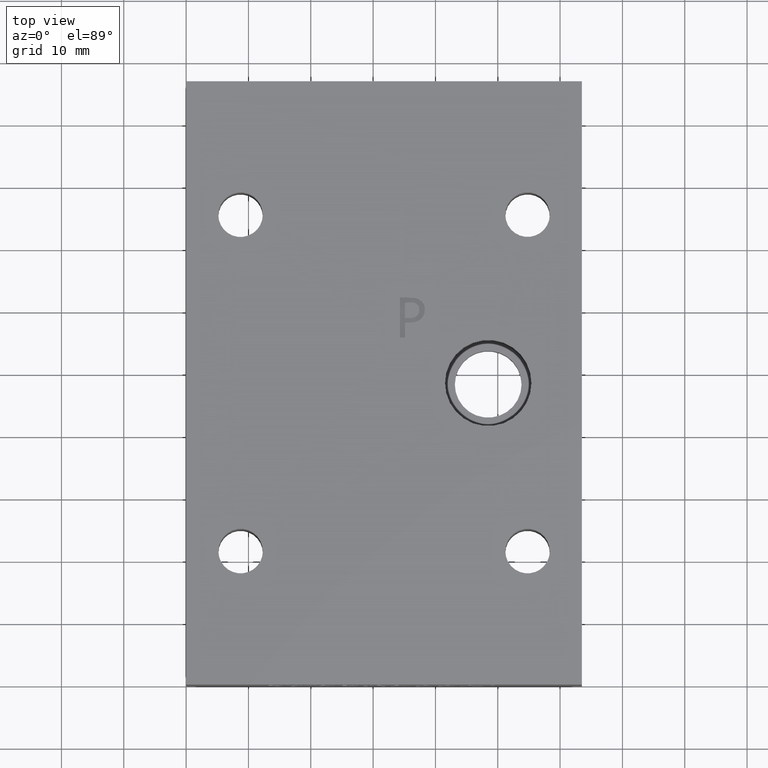
[diagram: clean part render]
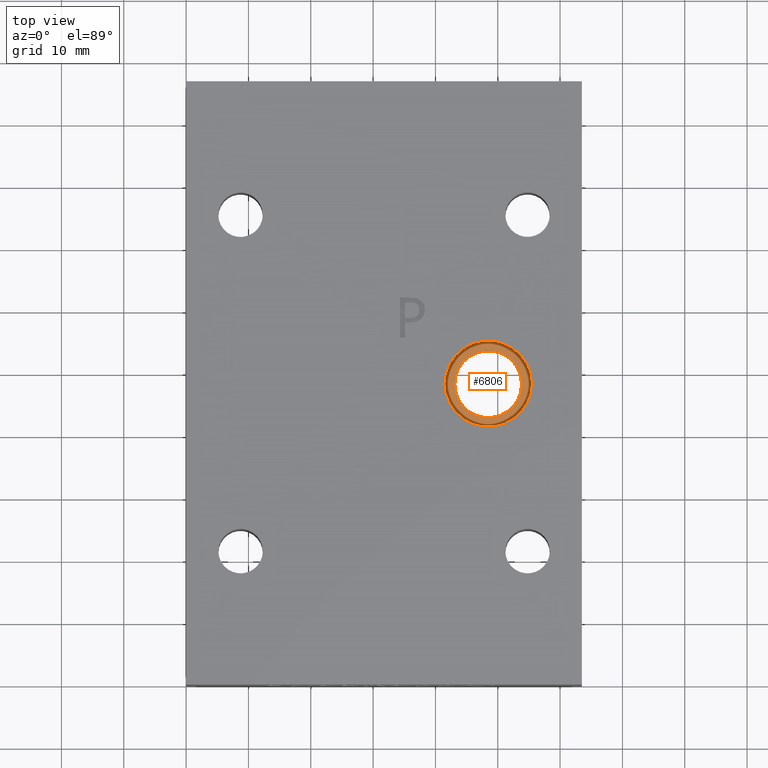
[diagram: same view with one face highlighted and labeled with its STEP entity id]
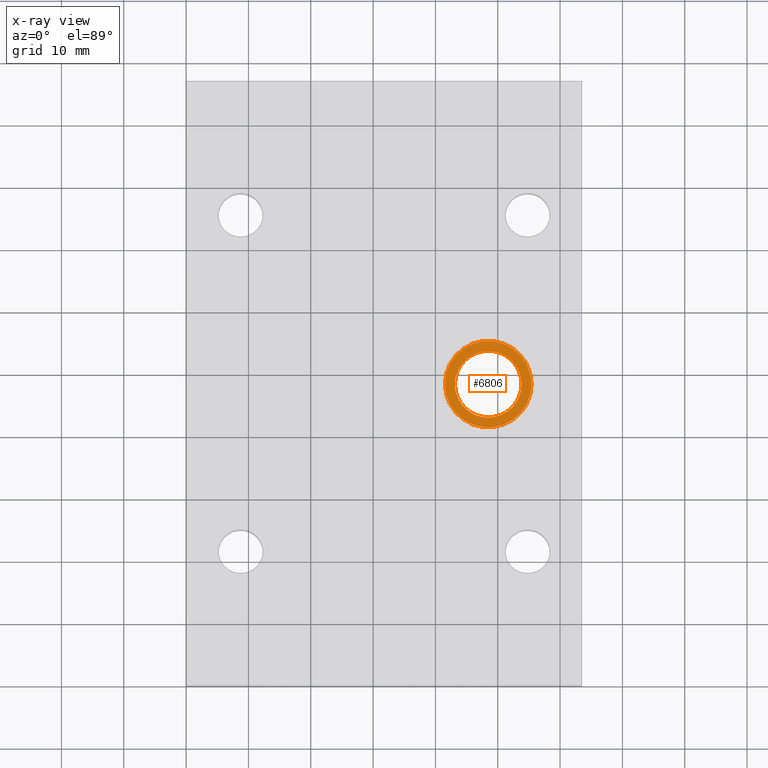
[diagram: x-ray of the same camera — body ghosted, the highlighted face saturated]
A machine part, top view. The second image highlights one B-rep face of the part: STEP entity #6806.
The next image is the same camera in x-ray: the body ghosted, the highlighted face saturated — about 0% of this face is hidden behind the body in this view.
In plain terms, the highlighted planar face has unit normal (0, 0, -1).
Its self-contained STEP definition (entity closure, byte-faithful):
#77=CIRCLE('',#7133,0.211);
#78=CIRCLE('',#7134,0.211);
#79=CIRCLE('',#7136,0.273);
#80=CIRCLE('',#7137,0.273);
#126=FACE_BOUND('',#971,.T.);
#570=FACE_OUTER_BOUND('',#970,.T.);
#970=EDGE_LOOP('',(#6181,#6182));
#971=EDGE_LOOP('',(#6183,#6184));
#3287=VERTEX_POINT('',#11985);
#3288=VERTEX_POINT('',#11987);
#3289=VERTEX_POINT('',#11991);
#3290=VERTEX_POINT('',#11992);
#4258=EDGE_CURVE('',#3287,#3288,#77,.T.);
#4259=EDGE_CURVE('',#3288,#3287,#78,.T.);
#4260=EDGE_CURVE('',#3289,#3290,#79,.T.);
#4261=EDGE_CURVE('',#3290,#3289,#80,.T.);
#6181=ORIENTED_EDGE('',*,*,#4260,.T.);
#6182=ORIENTED_EDGE('',*,*,#4261,.T.);
#6183=ORIENTED_EDGE('',*,*,#4259,.F.);
#6184=ORIENTED_EDGE('',*,*,#4258,.F.);
#6452=PLANE('',#7135);
#6806=ADVANCED_FACE('',(#570,#126),#6452,.F.);
#7133=AXIS2_PLACEMENT_3D('',#11988,#8476,#8477);
#7134=AXIS2_PLACEMENT_3D('',#11989,#8478,#8479);
#7135=AXIS2_PLACEMENT_3D('',#11990,#8480,#8481);
#7136=AXIS2_PLACEMENT_3D('',#11993,#8482,#8483);
#7137=AXIS2_PLACEMENT_3D('',#11994,#8484,#8485);
#8476=DIRECTION('center_axis',(0.,0.,1.));
#8477=DIRECTION('ref_axis',(1.,0.,0.));
#8478=DIRECTION('center_axis',(0.,0.,1.));
#8479=DIRECTION('ref_axis',(1.,0.,0.));
#8480=DIRECTION('center_axis',(0.,0.,-1.));
#8481=DIRECTION('ref_axis',(-1.,0.,0.));
#8482=DIRECTION('center_axis',(0.,0.,1.));
#8483=DIRECTION('ref_axis',(1.,0.,0.));
#8484=DIRECTION('center_axis',(0.,0.,1.));
#8485=DIRECTION('ref_axis',(1.,0.,0.));
#11985=CARTESIAN_POINT('',(1.697,1.906,0.301));
#11987=CARTESIAN_POINT('',(2.119,1.906,0.301));
#11988=CARTESIAN_POINT('Origin',(1.908,1.906,0.301));
#11989=CARTESIAN_POINT('Origin',(1.908,1.906,0.301));
#11990=CARTESIAN_POINT('Origin',(2.15,1.906,0.301));
#11991=CARTESIAN_POINT('',(2.181,1.906,0.301));
#11992=CARTESIAN_POINT('',(1.635,1.906,0.301));
#11993=CARTESIAN_POINT('Origin',(1.908,1.906,0.301));
#11994=CARTESIAN_POINT('Origin',(1.908,1.906,0.301));